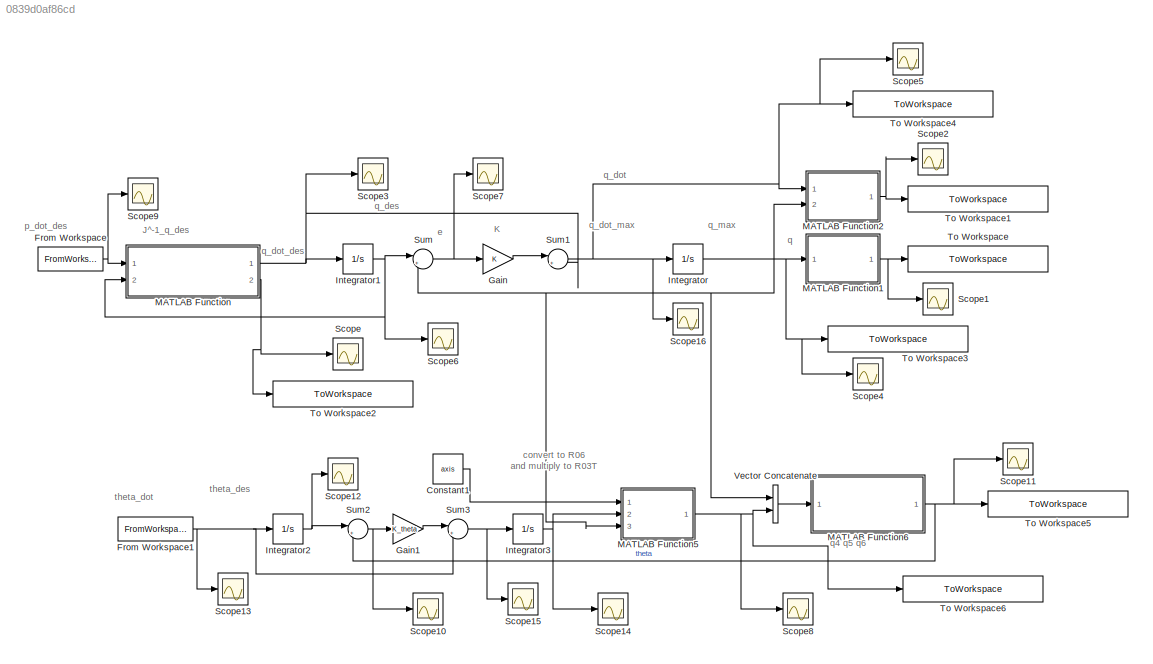
MODEL slx_0839d0af86cd
KIND model
CONFIG AbsTol = auto
CONFIG EnableMultiTasking = off
CONFIG FixedStep = auto
CONFIG MaxStep = auto
CONFIG MinStep = auto
CONFIG RelTol = 1e-3
CONFIG SampleTimeConstraint = Unconstrained
CONFIG Solver = VariableStepAuto
CONFIG SolverName = VariableStepAuto
CONFIG StartTime = 0.0
CONFIG StopTime = 4
BLOCK [Constant] Constant1
  Value = axis
BLOCK [FromWorkspace] From Workspace
  SampleTime = time_step
  VariableName = desired_vel
  ZeroCross = on
BLOCK [FromWorkspace] From Workspace1
  SampleTime = time_step
  VariableName = desired_theta
  ZeroCross = on
BLOCK [Gain] Gain
  Gain = K
  OutDataTypeStr = Inherit: Inherit via internal rule
  ParamDataTypeStr = Inherit: Inherit via internal rule
  SaturateOnIntegerOverflow = off
BLOCK [Gain] Gain1
  Gain = K_theta
  OutDataTypeStr = Inherit: Inherit via internal rule
  ParamDataTypeStr = Inherit: Inherit via internal rule
  SaturateOnIntegerOverflow = off
BLOCK [Integrator] Integrator
  InitialCondition = q0
  Ports = [1, 1]
BLOCK [Integrator] Integrator1
  InitialCondition = qd0
  Ports = [1, 1]
BLOCK [Integrator] Integrator2
  InitialCondition = theta_dot_0
  Ports = [1, 1]
BLOCK [Integrator] Integrator3
  InitialCondition = theta_0
  Ports = [1, 1]
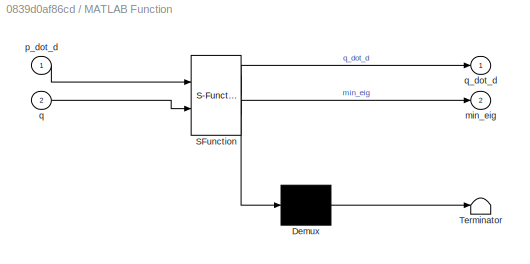
BLOCK [SubSystem] MATLAB Function
  ErrorFcn = Stateflow.Translate.translate
  PermitHierarchicalResolution = ExplicitOnly
  Ports = [2, 2]
  RequestExecContextInheritance = off
  SFBlockType = MATLAB Function
  TreatAsAtomicUnit = on
BLOCK [Demux] MATLAB Function/ Demux 
  Outputs = 1
  Ports = [1, 1]
BLOCK [S-Function] MATLAB Function/ SFunction 
  EnableBusSupport = on
  FunctionName = sf_sfun
  PortCounts = [2 3]
  Ports = [2, 3]
  SFcnIsStateOwnerBlock = off
  SFunctionDeploymentMode = off
  Tag = Stateflow S-Function 2
BLOCK [Terminator] MATLAB Function/ Terminator 
BLOCK [Outport] MATLAB Function/min_eig
  IconDisplay = Port number
  Port = 2
BLOCK [Inport] MATLAB Function/p_dot_d
  IconDisplay = Port number
BLOCK [Inport] MATLAB Function/q
  IconDisplay = Port number
  Port = 2
BLOCK [Outport] MATLAB Function/q_dot_d
  IconDisplay = Port number
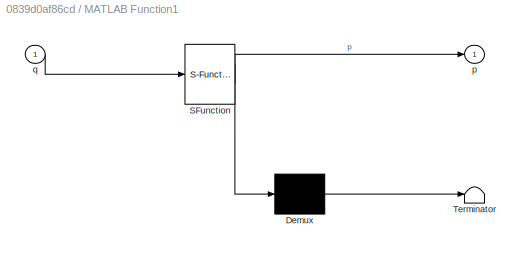
BLOCK [SubSystem] MATLAB Function1
  ErrorFcn = Stateflow.Translate.translate
  PermitHierarchicalResolution = ExplicitOnly
  Ports = [1, 1]
  RequestExecContextInheritance = off
  SFBlockType = MATLAB Function
  TreatAsAtomicUnit = on
BLOCK [Demux] MATLAB Function1/ Demux 
  Outputs = 1
  Ports = [1, 1]
BLOCK [S-Function] MATLAB Function1/ SFunction 
  EnableBusSupport = on
  FunctionName = sf_sfun
  PortCounts = [1 2]
  Ports = [1, 2]
  SFcnIsStateOwnerBlock = off
  SFunctionDeploymentMode = off
  Tag = Stateflow S-Function 1
BLOCK [Terminator] MATLAB Function1/ Terminator 
BLOCK [Outport] MATLAB Function1/p
  IconDisplay = Port number
BLOCK [Inport] MATLAB Function1/q
  IconDisplay = Port number
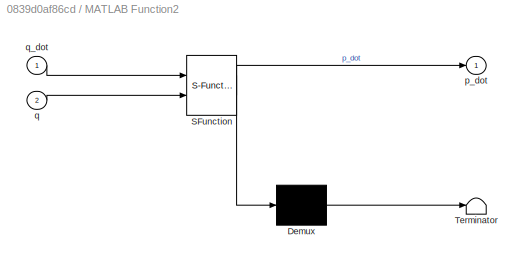
BLOCK [SubSystem] MATLAB Function2
  ErrorFcn = Stateflow.Translate.translate
  PermitHierarchicalResolution = ExplicitOnly
  Ports = [2, 1]
  RequestExecContextInheritance = off
  SFBlockType = MATLAB Function
  TreatAsAtomicUnit = on
BLOCK [Demux] MATLAB Function2/ Demux 
  Outputs = 1
  Ports = [1, 1]
BLOCK [S-Function] MATLAB Function2/ SFunction 
  EnableBusSupport = on
  FunctionName = sf_sfun
  PortCounts = [2 2]
  Ports = [2, 2]
  SFcnIsStateOwnerBlock = off
  SFunctionDeploymentMode = off
  Tag = Stateflow S-Function 3
BLOCK [Terminator] MATLAB Function2/ Terminator 
BLOCK [Outport] MATLAB Function2/p_dot
  IconDisplay = Port number
BLOCK [Inport] MATLAB Function2/q
  IconDisplay = Port number
  Port = 2
BLOCK [Inport] MATLAB Function2/q_dot
  IconDisplay = Port number
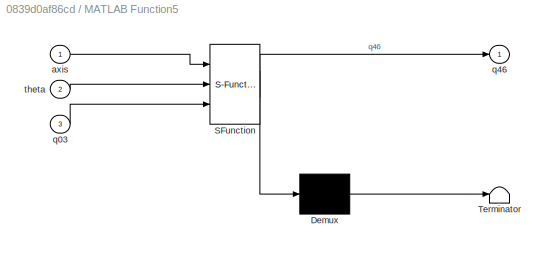
BLOCK [SubSystem] MATLAB Function5
  ErrorFcn = Stateflow.Translate.translate
  PermitHierarchicalResolution = ExplicitOnly
  Ports = [3, 1]
  RequestExecContextInheritance = off
  SFBlockType = MATLAB Function
  TreatAsAtomicUnit = on
BLOCK [Demux] MATLAB Function5/ Demux 
  Outputs = 1
  Ports = [1, 1]
BLOCK [S-Function] MATLAB Function5/ SFunction 
  EnableBusSupport = on
  FunctionName = sf_sfun
  PortCounts = [3 2]
  Ports = [3, 2]
  SFcnIsStateOwnerBlock = off
  SFunctionDeploymentMode = off
  Tag = Stateflow S-Function 6
BLOCK [Terminator] MATLAB Function5/ Terminator 
BLOCK [Inport] MATLAB Function5/axis
  IconDisplay = Port number
BLOCK [Inport] MATLAB Function5/q03
  IconDisplay = Port number
  Port = 3
BLOCK [Outport] MATLAB Function5/q46
  IconDisplay = Port number
BLOCK [Inport] MATLAB Function5/theta
  IconDisplay = Port number
  Port = 2
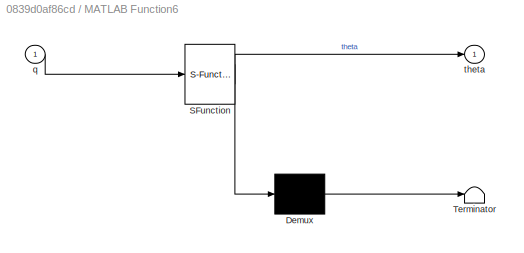
BLOCK [SubSystem] MATLAB Function6
  ErrorFcn = Stateflow.Translate.translate
  PermitHierarchicalResolution = ExplicitOnly
  Ports = [1, 1]
  RequestExecContextInheritance = off
  SFBlockType = MATLAB Function
  TreatAsAtomicUnit = on
BLOCK [Demux] MATLAB Function6/ Demux 
  Outputs = 1
  Ports = [1, 1]
BLOCK [S-Function] MATLAB Function6/ SFunction 
  EnableBusSupport = on
  FunctionName = sf_sfun
  PortCounts = [1 2]
  Ports = [1, 2]
  SFcnIsStateOwnerBlock = off
  SFunctionDeploymentMode = off
  Tag = Stateflow S-Function 7
BLOCK [Terminator] MATLAB Function6/ Terminator 
BLOCK [Inport] MATLAB Function6/q
  IconDisplay = Port number
BLOCK [Outport] MATLAB Function6/theta
  IconDisplay = Port number
BLOCK [Scope] Scope
  Floating = off
  NumInputPorts = 1
  Ports = [1]
  ScopeSpecificationString = Simulink.scopes.TimeScopeBlockCfg('CurrentConfiguration', extmgr.ConfigurationSet(extmgr.Configuration('Core','General UI',true),extmgr.Configuration('Core','Source UI',true),extmgr.Configuration('Sources','WiredSimulink',true),extmgr.Configuration('Visuals','Time Domain',true,'SerializedDisplays',{struct('MinYLimReal','-0.12763','MaxYLimReal','1.14866','YLabelReal','','MinYLimMag','0.00000','MaxY...<+1391ch>
BLOCK [Scope] Scope1
  Floating = off
  NumInputPorts = 1
  Ports = [1]
  ScopeSpecificationString = Simulink.scopes.TimeScopeBlockCfg('CurrentConfiguration', extmgr.ConfigurationSet(extmgr.Configuration('Core','General UI',true),extmgr.Configuration('Core','Source UI',true),extmgr.Configuration('Sources','WiredSimulink',true,'DataLoggingVariableName','ScopeData1'),extmgr.Configuration('Visuals','Time Domain',true,'SerializedDisplays',{struct('MinYLimReal','-0.79181','MaxYLimReal','2.12766','YLab...<+1419ch>
BLOCK [Scope] Scope10
  Floating = off
  NumInputPorts = 1
  Ports = [1]
  ScopeSpecificationString = Simulink.scopes.TimeScopeBlockCfg('CurrentConfiguration', extmgr.ConfigurationSet(extmgr.Configuration('Core','General UI',true),extmgr.Configuration('Core','Source UI',true),extmgr.Configuration('Sources','WiredSimulink',true,'DataLoggingVariableName','ScopeData2'),extmgr.Configuration('Visuals','Time Domain',true,'SerializedDisplays',{struct('MinYLimReal','-0.01844','MaxYLimReal','0.176','YLabel...<+1355ch>
BLOCK [Scope] Scope11
  Floating = off
  NumInputPorts = 1
  Ports = [1]
  ScopeSpecificationString = Simulink.scopes.TimeScopeBlockCfg('CurrentConfiguration', extmgr.ConfigurationSet(extmgr.Configuration('Core','General UI',true),extmgr.Configuration('Core','Source UI',true),extmgr.Configuration('Sources','WiredSimulink',true,'DataLoggingVariableName','ScopeData3'),extmgr.Configuration('Visuals','Time Domain',true,'SerializedDisplays',{struct('MinYLimReal','-0.2618','MaxYLimReal','2.3562','YLabel...<+1358ch>
BLOCK [Scope] Scope12
  Floating = off
  NumInputPorts = 1
  Ports = [1]
  ScopeSpecificationString = Simulink.scopes.TimeScopeBlockCfg('CurrentConfiguration', extmgr.ConfigurationSet(extmgr.Configuration('Core','General UI',true),extmgr.Configuration('Core','Source UI',true),extmgr.Configuration('Sources','WiredSimulink',true,'DataLoggingVariableName','ScopeData4'),extmgr.Configuration('Visuals','Time Domain',true,'SerializedDisplays',{struct('MinYLimReal','-0.26177','MaxYLimReal','2.35623','YLab...<+1370ch>
BLOCK [Scope] Scope13
  Floating = off
  NumInputPorts = 1
  Ports = [1]
  ScopeSpecificationString = Simulink.scopes.TimeScopeBlockCfg('CurrentConfiguration', extmgr.ConfigurationSet(extmgr.Configuration('Core','General UI',true),extmgr.Configuration('Core','Source UI',true),extmgr.Configuration('Sources','WiredSimulink',true,'DataLoggingVariableName','ScopeData5'),extmgr.Configuration('Visuals','Time Domain',true,'SerializedDisplays',{struct('MinYLimReal','-0.48842','MaxYLimReal','4.41643','YLab...<+1374ch>
BLOCK [Scope] Scope14
  Floating = off
  NumInputPorts = 1
  Ports = [1]
  ScopeSpecificationString = Simulink.scopes.TimeScopeBlockCfg('CurrentConfiguration', extmgr.ConfigurationSet(extmgr.Configuration('Core','General UI',true),extmgr.Configuration('Core','Source UI',true),extmgr.Configuration('Sources','WiredSimulink',true,'DataLoggingVariableName','ScopeData6'),extmgr.Configuration('Visuals','Time Domain',true,'SerializedDisplays',{struct('MinYLimReal','-0.2618','MaxYLimReal','2.3562','YLabel...<+1393ch>
BLOCK [Scope] Scope15
  Floating = off
  NumInputPorts = 1
  Ports = [1]
  ScopeSpecificationString = Simulink.scopes.TimeScopeBlockCfg('CurrentConfiguration', extmgr.ConfigurationSet(extmgr.Configuration('Core','General UI',true),extmgr.Configuration('Core','Source UI',true),extmgr.Configuration('Sources','WiredSimulink',true,'DataLoggingVariableName','ScopeData7'),extmgr.Configuration('Visuals','Time Domain',true,'SerializedDisplays',{struct('MinYLimReal','-0.51911','MaxYLimReal','4.43782','YLab...<+1363ch>
BLOCK [Scope] Scope16
  Floating = off
  NumInputPorts = 1
  Ports = [1]
  ScopeSpecificationString = Simulink.scopes.TimeScopeBlockCfg('CurrentConfiguration', extmgr.ConfigurationSet(extmgr.Configuration('Core','General UI',true),extmgr.Configuration('Core','Source UI',true),extmgr.Configuration('Sources','WiredSimulink',true,'DataLoggingVariableName','ScopeData8'),extmgr.Configuration('Visuals','Time Domain',true,'SerializedDisplays',{struct('MinYLimReal','-17.75695','MaxYLimReal','31.11574','YL...<+1389ch>
BLOCK [Scope] Scope2
  Floating = off
  NumInputPorts = 1
  Ports = [1]
  ScopeSpecificationString = Simulink.scopes.TimeScopeBlockCfg('CurrentConfiguration', extmgr.ConfigurationSet(extmgr.Configuration('Core','General UI',true),extmgr.Configuration('Core','Source UI',true),extmgr.Configuration('Sources','WiredSimulink',true,'DataLoggingVariableName','ScopeData2'),extmgr.Configuration('Visuals','Time Domain',true,'SerializedDisplays',{struct('MinYLimReal','-5.41215','MaxYLimReal','4.86615','YLab...<+1448ch>
BLOCK [Scope] Scope3
  Floating = off
  NumInputPorts = 1
  Ports = [1]
  ScopeSpecificationString = Simulink.scopes.TimeScopeBlockCfg('CurrentConfiguration', extmgr.ConfigurationSet(extmgr.Configuration('Core','General UI',true),extmgr.Configuration('Core','Source UI',true),extmgr.Configuration('Sources','WiredSimulink',true,'DataLoggingVariableName','ScopeData3'),extmgr.Configuration('Visuals','Time Domain',true,'SerializedDisplays',{struct('MinYLimReal','-17.75695','MaxYLimReal','31.11574','YL...<+1494ch>
BLOCK [Scope] Scope4
  Floating = off
  NumInputPorts = 1
  Ports = [1]
  ScopeSpecificationString = Simulink.scopes.TimeScopeBlockCfg('CurrentConfiguration', extmgr.ConfigurationSet(extmgr.Configuration('Core','General UI',true),extmgr.Configuration('Core','Source UI',true),extmgr.Configuration('Sources','WiredSimulink',true,'DataLoggingVariableName','ScopeData4'),extmgr.Configuration('Visuals','Time Domain',true,'SerializedDisplays',{struct('MinYLimReal','-2.67238','MaxYLimReal','6.99991','YLab...<+1401ch>
BLOCK [Scope] Scope5
  Floating = off
  NumInputPorts = 1
  Ports = [1]
  ScopeSpecificationString = Simulink.scopes.TimeScopeBlockCfg('CurrentConfiguration', extmgr.ConfigurationSet(extmgr.Configuration('Core','General UI',true),extmgr.Configuration('Core','Source UI',true),extmgr.Configuration('Sources','WiredSimulink',true,'DataLoggingVariableName','ScopeData5'),extmgr.Configuration('Visuals','Time Domain',true,'SerializedDisplays',{struct('MinYLimReal','-95.90281','MaxYLimReal','116.52715','Y...<+1393ch>
BLOCK [Scope] Scope6
  Floating = off
  NumInputPorts = 1
  Ports = [1]
  ScopeSpecificationString = Simulink.scopes.TimeScopeBlockCfg('CurrentConfiguration', extmgr.ConfigurationSet(extmgr.Configuration('Core','General UI',true),extmgr.Configuration('Core','Source UI',true),extmgr.Configuration('Sources','WiredSimulink',true,'DataLoggingVariableName','ScopeData6'),extmgr.Configuration('Visuals','Time Domain',true,'SerializedDisplays',{struct('MinYLimReal','-2.67238','MaxYLimReal','6.99991','YLab...<+1404ch>
BLOCK [Scope] Scope7
  Floating = off
  NumInputPorts = 1
  Ports = [1]
  ScopeSpecificationString = Simulink.scopes.TimeScopeBlockCfg('CurrentConfiguration', extmgr.ConfigurationSet(extmgr.Configuration('Core','General UI',true),extmgr.Configuration('Core','Source UI',true),extmgr.Configuration('Sources','WiredSimulink',true,'DataLoggingVariableName','ScopeData7'),extmgr.Configuration('Visuals','Time Domain',true,'SerializedDisplays',{struct('MinYLimReal','-1.00000','MaxYLimReal','1.00000','YLab...<+1380ch>
BLOCK [Scope] Scope8
  Floating = off
  NumInputPorts = 1
  Ports = [1]
  ScopeSpecificationString = Simulink.scopes.TimeScopeBlockCfg('CurrentConfiguration', extmgr.ConfigurationSet(extmgr.Configuration('Core','General UI',true),extmgr.Configuration('Core','Source UI',true),extmgr.Configuration('Sources','WiredSimulink',true,'DataLoggingVariableName','ScopeData1'),extmgr.Configuration('Visuals','Time Domain',true,'SerializedDisplays',{struct('MinYLimReal','-3.92035','MaxYLimReal','3.92338','YLab...<+1419ch>
BLOCK [Scope] Scope9
  Floating = off
  NumInputPorts = 1
  Ports = [1]
  ScopeSpecificationString = Simulink.scopes.TimeScopeBlockCfg('CurrentConfiguration', extmgr.ConfigurationSet(extmgr.Configuration('Core','General UI',true),extmgr.Configuration('Core','Source UI',true),extmgr.Configuration('Sources','WiredSimulink',true,'DataLoggingVariableName','ScopeData2'),extmgr.Configuration('Visuals','Time Domain',true,'SerializedDisplays',{struct('MinYLimReal','-5.44125','MaxYLimReal','5.12811','YLab...<+1413ch>
BLOCK [Sum] Sum
  IconShape = round
  InputSameDT = off
  Inputs = |+-
  OutDataTypeStr = Inherit: Inherit via internal rule
  Ports = [2, 1]
  SaturateOnIntegerOverflow = off
BLOCK [Sum] Sum1
  IconShape = round
  InputSameDT = off
  Inputs = |++
  OutDataTypeStr = Inherit: Inherit via internal rule
  Ports = [2, 1]
  SaturateOnIntegerOverflow = off
BLOCK [Sum] Sum2
  IconShape = round
  InputSameDT = off
  Inputs = |+-
  OutDataTypeStr = Inherit: Inherit via internal rule
  Ports = [2, 1]
  SaturateOnIntegerOverflow = off
BLOCK [Sum] Sum3
  IconShape = round
  InputSameDT = off
  Inputs = |+-
  OutDataTypeStr = Inherit: Inherit via internal rule
  Ports = [2, 1]
  SaturateOnIntegerOverflow = off
BLOCK [ToWorkspace] To Workspace
  FixptAsFi = on
  MaxDataPoints = inf
  Ports = [1]
  SampleTime = time_step
  SaveFormat = Timeseries
  VariableName = control_joint_task_position
BLOCK [ToWorkspace] To Workspace1
  FixptAsFi = on
  MaxDataPoints = inf
  Ports = [1]
  SampleTime = time_step
  SaveFormat = Timeseries
  VariableName = control_joint_task_velocity
BLOCK [ToWorkspace] To Workspace2
  FixptAsFi = on
  MaxDataPoints = inf
  Ports = [1]
  SampleTime = -1
  SaveFormat = Timeseries
  VariableName = control_joint_min_eig
BLOCK [ToWorkspace] To Workspace3
  FixptAsFi = on
  MaxDataPoints = inf
  Ports = [1]
  SampleTime = time_step
  SaveFormat = Timeseries
  VariableName = control_joint_task_angles
BLOCK [ToWorkspace] To Workspace4
  FixptAsFi = on
  MaxDataPoints = inf
  Ports = [1]
  SampleTime = time_step
  SaveFormat = Timeseries
  VariableName = control_joint_task_angles_speed
BLOCK [ToWorkspace] To Workspace5
  FixptAsFi = on
  MaxDataPoints = inf
  Ports = [1]
  SampleTime = time_step
  SaveFormat = Timeseries
  VariableName = control_joint_task_theta
BLOCK [ToWorkspace] To Workspace6
  FixptAsFi = on
  MaxDataPoints = inf
  Ports = [1]
  SampleTime = time_step
  SaveFormat = Timeseries
  VariableName = control_joint_task_angles_ee
BLOCK [Concatenate] Vector Concatenate
  Ports = [2, 1]
ANNOTATION (root): J^-1_q_des
ANNOTATION (root): K
ANNOTATION (root): convert to R06 and multiply to R03T
ANNOTATION (root): e
ANNOTATION (root): p_dot_des
ANNOTATION (root): q
ANNOTATION (root): q4 q5 q6
ANNOTATION (root): q_des
ANNOTATION (root): q_dot
ANNOTATION (root): q_dot_des
ANNOTATION (root): q_dot_max
ANNOTATION (root): q_max
ANNOTATION (root): theta_des
ANNOTATION (root): theta_dot
LINE Constant1:1 -> MATLAB Function5:1
NET From Workspace1:1 -> Integrator2:1, Scope13:1, Sum3:2
NET From Workspace:1 -> MATLAB Function:1, Scope9:1
LINE Gain1:1 -> Sum3:1
LINE Gain:1 -> Sum1:1
NET Integrator1:1 -> MATLAB Function:2, Scope6:1, Sum:1
NET Integrator2:1 -> Scope12:1, Sum2:1
NET Integrator3:1 -> MATLAB Function5:2, Scope14:1
NET Integrator:1 -> MATLAB Function1:1, MATLAB Function2:2, MATLAB Function5:3, Scope4:1, Sum:2, To Workspace3:1, Vector Concatenate:1
NET MATLAB Function1:1 -> Scope1:1, To Workspace:1
NET MATLAB Function2:1 -> Scope2:1, To Workspace1:1
NET MATLAB Function5:1 -> Scope8:1, To Workspace6:1, Vector Concatenate:2
NET MATLAB Function6:1 -> Scope11:1, Sum2:2, To Workspace5:1
NET MATLAB Function:1 -> Integrator1:1, Scope3:1, Sum1:2
NET MATLAB Function:2 -> Scope:1, To Workspace2:1
NET Sum1:1 -> Integrator:1, MATLAB Function2:1, Scope16:1, Scope5:1, To Workspace4:1
NET Sum2:1 -> Gain1:1, Scope10:1
NET Sum3:1 -> Integrator3:1, Scope15:1
NET Sum:1 -> Gain:1, Scope7:1
LINE Vector Concatenate:1 -> MATLAB Function6:1
note: NET lines group one-source signal fan-out (src -> all destinations, sorted); 1:1 wires keep LINE
CHART MATLAB Function1 states=1 transitions=1
  STATE_LABEL 'eML_blk_kernel()'
  STATE_LABEL 'SCRIPT:\nfunction p = F_r(q)\n% antrophomorphic arm no spherical wrist\n%F = [cos(q(1))*(cos(q(2) + q(3)) + cos(q(2))); sin(q(1))*(cos(q(2) + q(3)) + cos(q(2))); sin(q(2) + q(3)) + sin(q(2))];\nF = [cos(q(1))*(cos(q(2) + q(3)) + sin(q(2) + q(3)) + cos(q(2))); sin(q(1))*(cos(q(2) + q(3)) + sin(q(2) + q(3)) + cos(q(2))); sin(q(2) + q(3)) - cos(q(2) + q(3)) + sin(q(2))];\np = F;\n\n'
CHART MATLAB Function states=1 transitions=1
  STATE_LABEL 'eML_blk_kernel()'
  STATE_LABEL 'SCRIPT:\nfunction [q_dot_d,min_eig] = J_inv_q(p_dot_d,q)\n% antrophomorphic arm d3 =1, no d4 (maybe)\n% J = [-sin(q(1))*(cos(q(2) + q(3)) + cos(q(2))), -cos(q(1))*(sin(q(2) + q(3)) + sin(q(2))), -sin(q(2) + q(3))*cos(q(1));\n%     cos(q(1))*(cos(q(2) + q(3)) + cos(q(2))), -sin(q(1))*(sin(q(2) + q(3)) + sin(q(2))), -sin(q(2) + q(3))*sin(q(1));\n%     0, (cos(q(2) + q(3)) + cos(q(2))), cos(q(2) + q(3))];...<+1808ch>'
CHART MATLAB Function2 states=1 transitions=1
  STATE_LABEL 'eML_blk_kernel()'
  STATE_LABEL 'SCRIPT:\nfunction p_dot = J_q(q_dot,q)\n% anthropomorphic arm no spherical wrist\n% J = [-sin(q(1))*(cos(q(2) + q(3)) + cos(q(2))), -cos(q(1))*(sin(q(2) + q(3)) + sin(q(2))), -sin(q(2) + q(3))*cos(q(1));\n%     cos(q(1))*(cos(q(2) + q(3)) + cos(q(2))), -sin(q(1))*(sin(q(2) + q(3)) + sin(q(2))), -sin(q(2) + q(3))*sin(q(1));\n%     0, (cos(q(2) + q(3)) + cos(q(2))), cos(q(2) + q(3))];\nJ = [-sin(q(1))*(co...<+414ch>'
CHART MATLAB Function5 states=1 transitions=1
  STATE_LABEL 'eML_blk_kernel()'
  STATE_LABEL "SCRIPT:\nfunction q46 = R_zyz(axis,theta, q03)\nR06 = axis * axis' + (eye(3,3) - axis * axis') * cos(theta) + [0 -axis(3) axis(2) ; axis(3) 0 -axis(1) ; -axis(2) axis(1) 0 ]*sin(theta);\n\nR03 = [cos(q03(2) + q03(3))*cos(q03(1)), sin(q03(1)), sin(q03(2) + q03(3))*cos(q03(1));\n    cos(q03(2) + q03(3))*sin(q03(1)), -cos(q03(1)), sin(q03(2) + q03(3))*sin(q03(1));\n    sin(q03(2) + q03(3)), 0, -cos(q03(2) ...<+147ch>"
CHART MATLAB Function6 states=1 transitions=1
  STATE_LABEL 'eML_blk_kernel()'
  STATE_LABEL 'SCRIPT:\nfunction theta = R_06(q)\n\nR = zeros(3,3);\ntheta = 0;\nR = [sin(q(6))*(cos(q(4))*sin(q(1)) - sin(q(4))*(cos(q(1))*cos(q(2))*cos(q(3)) - cos(q(1))*sin(q(2))*sin(q(3)))) + cos(q(6))*(cos(q(5))*(sin(q(1))*sin(q(4)) + cos(q(4))*(cos(q(1))*cos(q(2))*cos(q(3)) - cos(q(1))*sin(q(2))*sin(q(3)))) - sin(q(5))*(cos(q(1))*cos(q(2))*sin(q(3)) + cos(q(1))*cos(q(3))*sin(q(2)))), cos(q(6))*(cos(q(4))*sin(q(...<+1961ch>'
